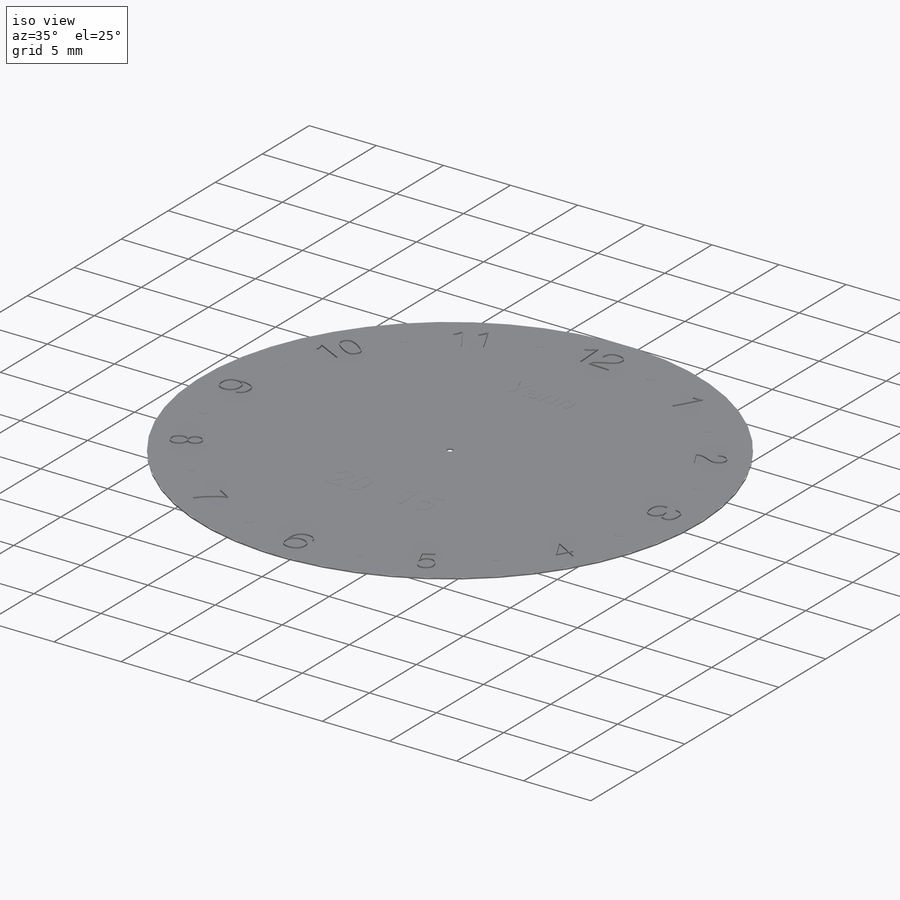
[diagram: iso view]
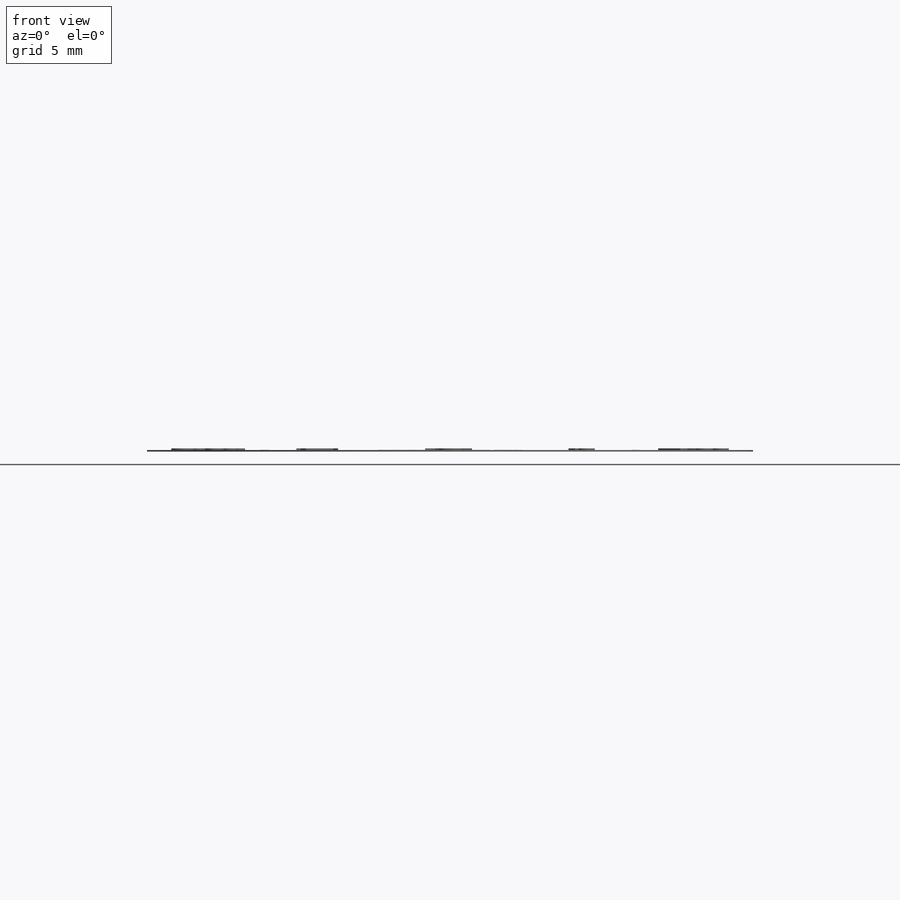
[diagram: front view]
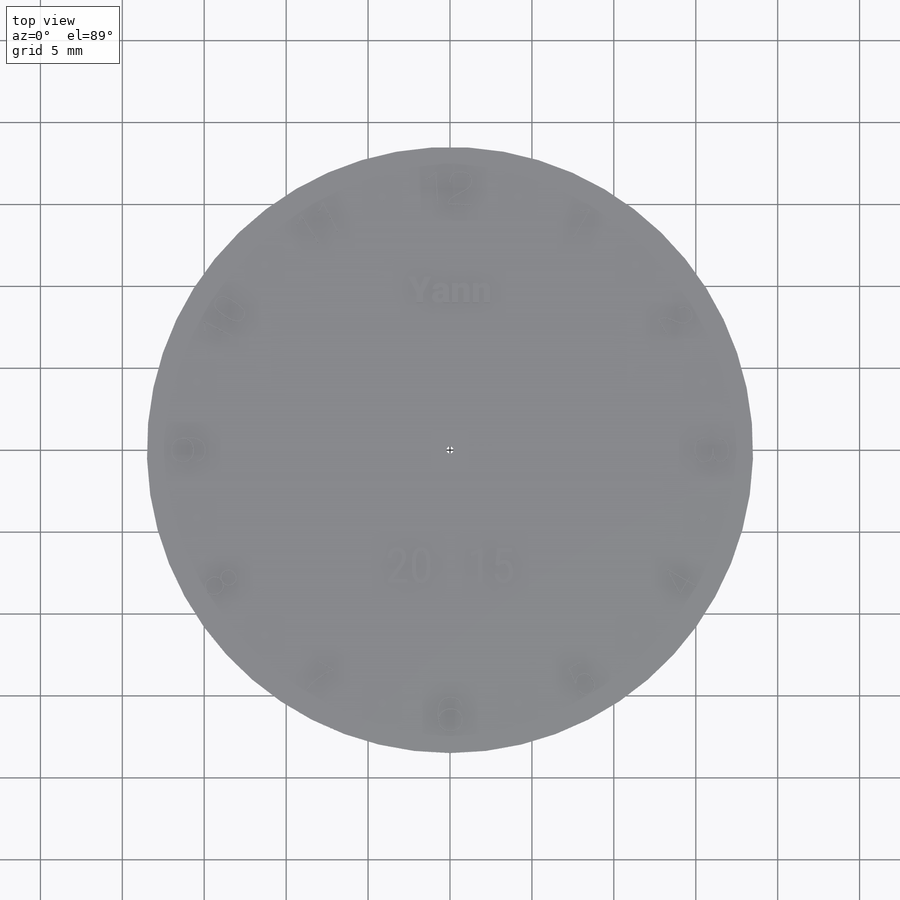
[diagram: top view]
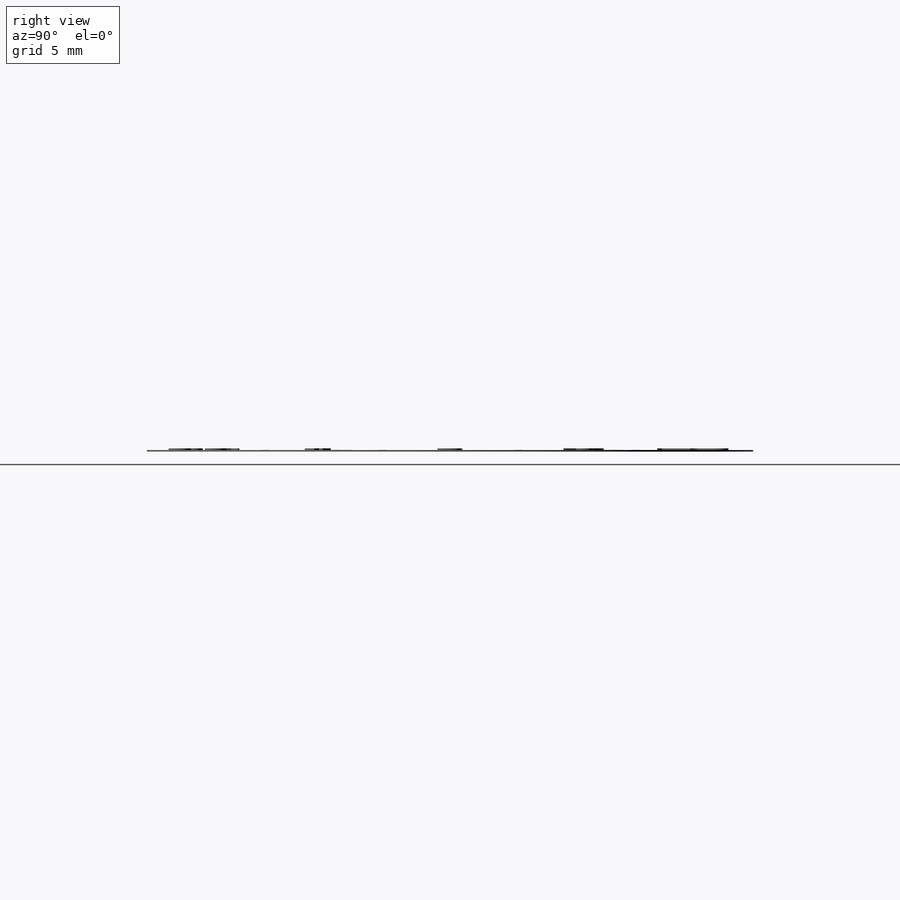
[diagram: right view]
SOLIDWORKS PART (.sldprt)
format: sldprt  version: not decoded by parser v0  size: 1,560,064 bytes
history: native  units: mm
features: sketch x20, extrude x18, material x1, cut_extrude x1 (+13 scaffold rows collapsed)
feature tree (53):
  scaffold x13  (default folders/planes/origin — collapsed)
  material  "Matériau <non spécifié>"
  sketch  "Sketch1"  dims[D1=37.0mm]
  extrude  "BG_Plate"  Depth=0.1mm
  sketch  "Sketch3"  dims[D1=34.0mm D2=31.0mm]
  sketch  "Sketch4"  dims[c1.D1=0.5mm c1.D2=0.5mm c1.D6=0.5mm c2.D2=1.0mm c2.D1=17.0mm c3.D2=17.0mm c4.D2=30.0deg c4.D4=16.0mm c4.D5=15.0mm c4.D7=0.7mm c4.D8=2.0]
  sketch  "Sketch5"  dims[c1.D7=~0.273307mm c1.D8=~0.273307mm c1.D1=0.25mm c1.D2=0.25mm c1.D3=5.5mm c1.D4=0.1mm c1.D5=0.75mm c1.D6=0.1mm c2.D3=0.05mm c2.D6=0.033mm c2.D7=0.04mm c2.D8=5.75mm c2.D9=5.75mm c3.D6=~5.733183mm c4.D6=10.0deg c4.D7=5.75mm c5.D7=~0.105542mm c6.D7=90.0deg c6.D8=~0.041395mm c7.D7=~0.02382mm c8.D7=90.0deg c8.D8=~0.078711mm c9.D8=90.0deg c9.D10=~0.10514mm c10.D10=90.0deg c10.D11=~0.062858mm c11.D11=90.0deg c11.D12=0.03mm c11.D13=0.04mm c11.D14=0.16mm c11.D15=0.0035mm c12.D15=90.0deg c12.D14=0.16mm c12.D12=0.03mm c12.D13=0.07mm c12.D16=0.04mm c12.D3=~4.607411mm c12.D9=~4.619001mm c13.D3=0.07mm c13.D6=0.08mm c13.D7=0.03mm c13.D8=0.16mm c13.D1=0.08mm c13.D2=0.07mm c14.D3=~0.037722mm c15.D3=~89.812772deg c16.D3=0.03mm c16.D4=0.08mm c16.D5=0.07mm c16.D6=5.86mm c16.D7=0.03mm c16.D1=9.0mm c16.D2=9.0mm c17.D3=~7.808297mm c17.D6=~160.346176deg]
  sketch  "Sketch7"  dims[D1=9.0mm]
  sketch  "Sketch8"  dims[c1.D1=9.0mm c1.D2=9.0mm c2.D1=0.0mm c2.D2=0.0mm]
  sketch  "Sketch9"  dims[c1.D1=9.0mm c1.D2=9.0mm c1.D3=9.0mm c2.D1=0.0mm c2.D2=0.0mm c2.D3=0.0mm]
  sketch  "Sketch13"  dims[c1.D1=9.0mm c1.D2=9.0mm c1.D3=9.0mm c1.D4=9.0mm c2.D1=0.0mm c2.D2=0.0mm c2.D3=0.0mm c2.D4=0.0mm]
  sketch  "Sketch17"  dims[D1=0.0mm]
  sketch  "Sketch20"  dims[D1=9.0mm D2=9.0mm]
  sketch  "Sketch21"  dims[D1=9.0mm D2=9.0mm D3=9.0mm]
  sketch  "Sketch25"  dims[D1=9.0mm D2=9.0mm D3=9.0mm D4=9.0mm]
  sketch  "Sketch26"  dims[D1=9.0mm]
  sketch  "Sketch27"  dims[D1=9.0mm D2=9.0mm]
  sketch  "Sketch28"  dims[D1=9.0mm D2=9.0mm]
  sketch  "Sketch29"  dims[D1=9.0mm D2=6.0mm D3=~2.087415mm D4=2.1mm]
  extrude  "SecDots"  Depth=0.01mm
  extrude  "1"  Depth=0.01mm
  extrude  "2"  Depth=0.01mm
  extrude  "3"  Depth=0.01mm
  extrude  "4"  Depth=0.01mm
  extrude  "5"  Depth=0.01mm
  extrude  "6"  Depth=0.01mm
  extrude  "7"  Depth=0.01mm
  extrude  "8"  Depth=0.01mm
  extrude  "9"  Depth=0.01mm
  extrude  "10"  Depth=0.01mm
  extrude  "11"  Depth=0.01mm
  extrude  "12"  Depth=0.01mm
  extrude  "txtImperial"  Depth=0.01mm
  extrude  "Ring"  Depth=0.005mm
  sketch  "Sketch31"  dims[c1.D1=0.4mm c1.D2=0.4mm c2.D1=1.19mm c2.D3=0.25mm c2.D4=0.25mm c2.D5=~68.116313mm c2.D6=~44.488609mm]
  extrude  "RingDecoration"  Depth=0.005mm
  sketch  "Sketch32"  dims[D1=0.42mm D2=16.6301mm D3=24.0mm]
  cut_extrude  "Cut-Extrude2"  Depth=10mm
  sketch  "Esquisse2"  dims[c1.D1=24.0mm c1.D2=90.0deg c2.D2=12.0mm c3.D2=30.0deg c3.D3=~10.392305mm c4.D3=30.0deg c4.D4=~10.392305mm c5.D4=30.0deg c5.D5=12.0mm c6.D5=30.0deg c6.D6=~11.587619mm c7.D6=15.0deg c7.D7=~11.587619mm c8.D7=15.0deg c8.D8=12.0mm c9.D8=15.0deg c9.D9=12.0mm c10.D9=15.0deg]
  sketch  "Esquisse3"  dims[c1.D1=34.3mm c1.D2=17.15mm c1.D4=17.15mm c1.D5=17.15mm c1.D6=17.15mm c1.D7=17.15mm c2.D2=~16.425381mm c3.D2=7.5deg c3.D3=~11.897338mm c4.D3=15.0deg]
  extrude  "Boss.-Extru.1"  Depth=0.2mm
decode coverage: 39 of 39 modeling features carry decoded parameters
note: ~ marks probable driven/reference dimensions
note: suppression state not decoded; provenance and decode notes live in map.json
